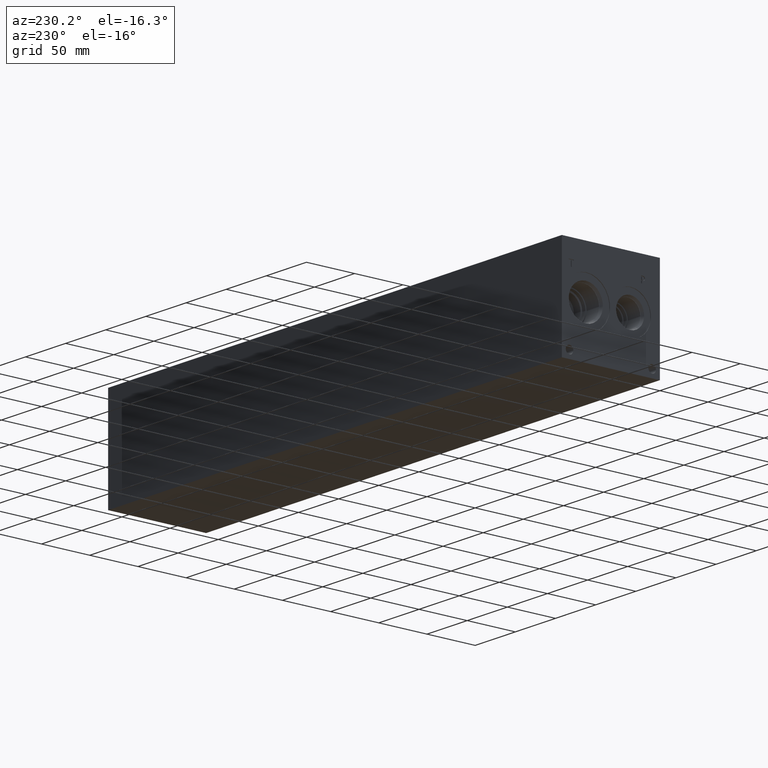
[diagram: clean part render]
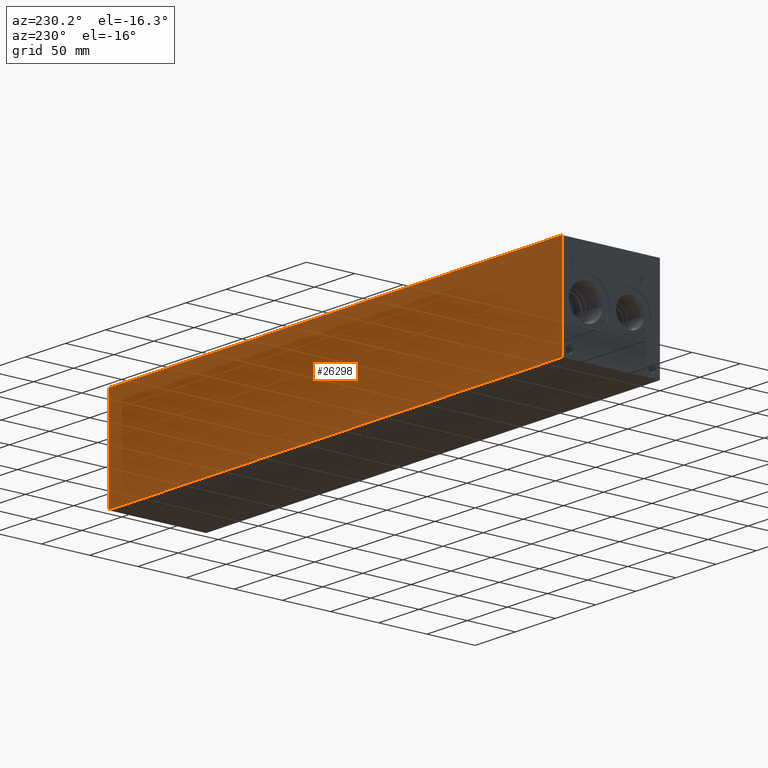
[diagram: same view with one face highlighted and labeled with its STEP entity id]
A machine part, auxiliary view. The second image highlights one B-rep face of the part: STEP entity #26298.
In plain terms, the highlighted planar face has unit normal (0, 1, 0).
Its self-contained STEP definition (entity closure, byte-faithful):
#2445=PLANE('',#28450);
#3830=FACE_OUTER_BOUND('',#5423,.T.);
#5423=EDGE_LOOP('',(#23681,#23682,#23683,#23684));
#5551=LINE('',#35062,#7673);
#5613=LINE('',#35340,#7735);
#7638=LINE('',#45935,#9760);
#7639=LINE('',#45936,#9761);
#7673=VECTOR('',#28510,10.);
#7735=VECTOR('',#28626,10.);
#9760=VECTOR('',#34845,10.);
#9761=VECTOR('',#34846,10.);
#10325=VERTEX_POINT('',#35059);
#10326=VERTEX_POINT('',#35061);
#10384=VERTEX_POINT('',#35333);
#10387=VERTEX_POINT('',#35338);
#12926=EDGE_CURVE('',#10325,#10326,#5551,.T.);
#13012=EDGE_CURVE('',#10384,#10387,#5613,.T.);
#16545=EDGE_CURVE('',#10325,#10384,#7638,.T.);
#16546=EDGE_CURVE('',#10326,#10387,#7639,.T.);
#23681=ORIENTED_EDGE('',*,*,#16545,.T.);
#23682=ORIENTED_EDGE('',*,*,#13012,.T.);
#23683=ORIENTED_EDGE('',*,*,#16546,.F.);
#23684=ORIENTED_EDGE('',*,*,#12926,.F.);
#26298=ADVANCED_FACE('',(#3830),#2445,.T.);
#28450=AXIS2_PLACEMENT_3D('',#45934,#34843,#34844);
#28510=DIRECTION('',(0.,0.,1.));
#28626=DIRECTION('',(0.,0.,1.));
#34843=DIRECTION('center_axis',(0.,1.,0.));
#34844=DIRECTION('ref_axis',(-1.,0.,0.));
#34845=DIRECTION('',(-1.,0.,0.));
#34846=DIRECTION('',(-1.,0.,0.));
#35059=CARTESIAN_POINT('',(565.15,101.6,0.));
#35061=CARTESIAN_POINT('',(565.15,101.6,101.6));
#35062=CARTESIAN_POINT('',(565.15,101.6,0.));
#35333=CARTESIAN_POINT('',(0.,101.6,0.));
#35338=CARTESIAN_POINT('',(0.,101.6,101.6));
#35340=CARTESIAN_POINT('',(0.,101.6,0.));
#45934=CARTESIAN_POINT('Origin',(565.15,101.6,0.));
#45935=CARTESIAN_POINT('',(565.15,101.6,0.));
#45936=CARTESIAN_POINT('',(565.15,101.6,101.6));